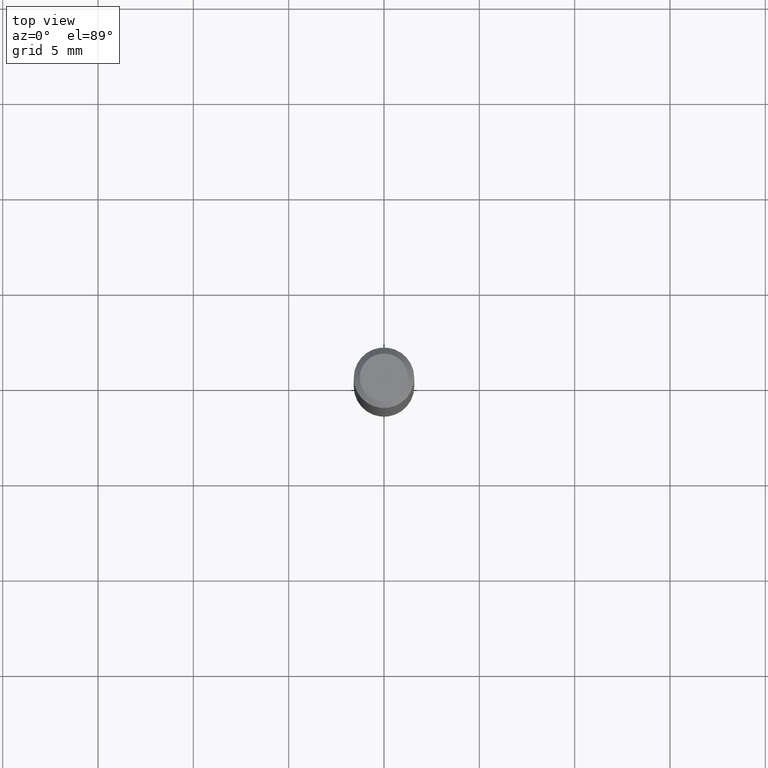
[diagram: clean part render]
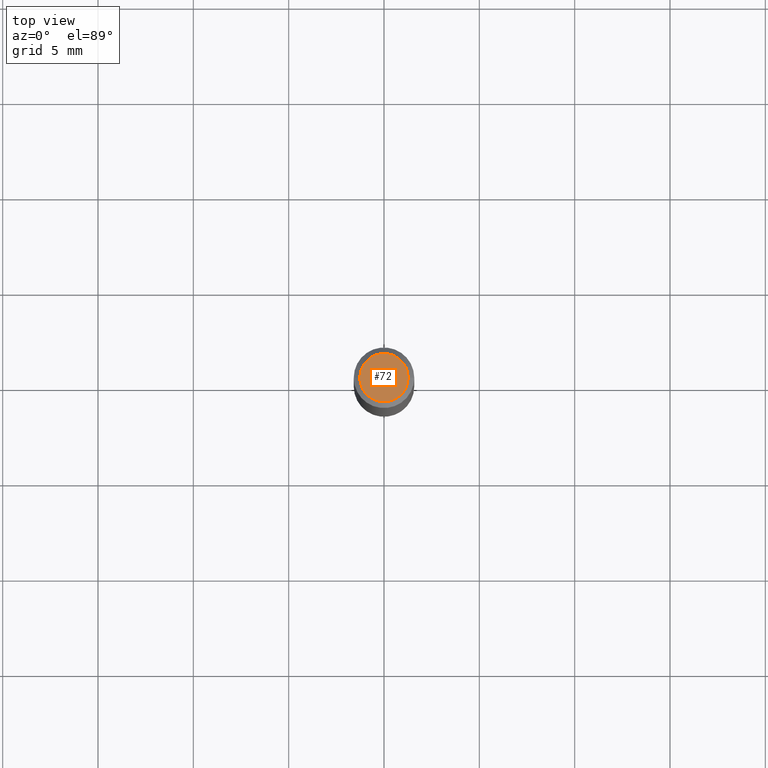
[diagram: same view with one face highlighted and labeled with its STEP entity id]
A machine part, top view. The second image highlights one B-rep face of the part: STEP entity #72.
In plain terms, the highlighted planar face has unit normal (0, -0, -1).
Its self-contained STEP definition (entity closure, byte-faithful):
#9 = AXIS2_PLACEMENT_3D ( 'NONE', #133, #172, #175 ) ;
#56 = CIRCLE ( 'NONE', #134, 0.04999999999999999584 ) ;
#72 = ADVANCED_FACE ( 'NONE', ( #90 ), #241, .F. ) ;
#77 = EDGE_LOOP ( 'NONE', ( #435, #93 ) ) ;
#90 = FACE_OUTER_BOUND ( 'NONE', #77, .T. ) ;
#93 = ORIENTED_EDGE ( 'NONE', *, *, #171, .T. ) ;
#96 = CARTESIAN_POINT ( 'NONE',  ( -4.132873053354867254E-48, 5.900647395337818946E-34, 1.690012582823346072E-19 ) ) ;
#101 = EDGE_CURVE ( 'NONE', #249, #476, #168, .T. ) ;
#133 = CARTESIAN_POINT ( 'NONE',  ( -8.265746106709734507E-48, 1.180129479067563789E-33, 3.380025165646692144E-19 ) ) ;
#134 = AXIS2_PLACEMENT_3D ( 'NONE', #296, #221, #418 ) ;
#168 = CIRCLE ( 'NONE', #9, 0.04999999999999999584 ) ;
#171 = EDGE_CURVE ( 'NONE', #476, #249, #56, .T. ) ;
#172 = DIRECTION ( 'NONE',  ( -2.445468806185136597E-29, 3.491481338843145583E-15, 1.000000000000000000 ) ) ;
#175 = DIRECTION ( 'NONE',  ( 1.000000000000000000, -6.982962677686265922E-15, 4.876194921942043128E-29 ) ) ;
#221 = DIRECTION ( 'NONE',  ( -2.445468806185136597E-29, 3.491481338843145583E-15, 1.000000000000000000 ) ) ;
#241 = PLANE ( 'NONE',  #385 ) ;
#249 = VERTEX_POINT ( 'NONE', #485 ) ;
#296 = CARTESIAN_POINT ( 'NONE',  ( -8.265746106709734507E-48, 1.180129479067563789E-33, 3.380025165646692144E-19 ) ) ;
#366 = DIRECTION ( 'NONE',  ( 2.438088387897960049E-29, -3.491481338843145188E-15, -1.000000000000000000 ) ) ;
#385 = AXIS2_PLACEMENT_3D ( 'NONE', #96, #366, #438 ) ;
#418 = DIRECTION ( 'NONE',  ( 1.000000000000000000, -6.982962677686265922E-15, 4.876194921942043128E-29 ) ) ;
#435 = ORIENTED_EDGE ( 'NONE', *, *, #101, .T. ) ;
#438 = DIRECTION ( 'NONE',  ( -1.000000000000000000, 6.982962677686265922E-15, -4.876176775795935793E-29 ) ) ;
#476 = VERTEX_POINT ( 'NONE', #484 ) ;
#484 = CARTESIAN_POINT ( 'NONE',  ( 0.04999999999999999584, -4.077247707424184705E-16, 3.380025165673154903E-19 ) ) ;
#485 = CARTESIAN_POINT ( 'NONE',  ( -0.04999999999999999584, 3.709698922520826725E-16, 3.380025165621512536E-19 ) ) ;